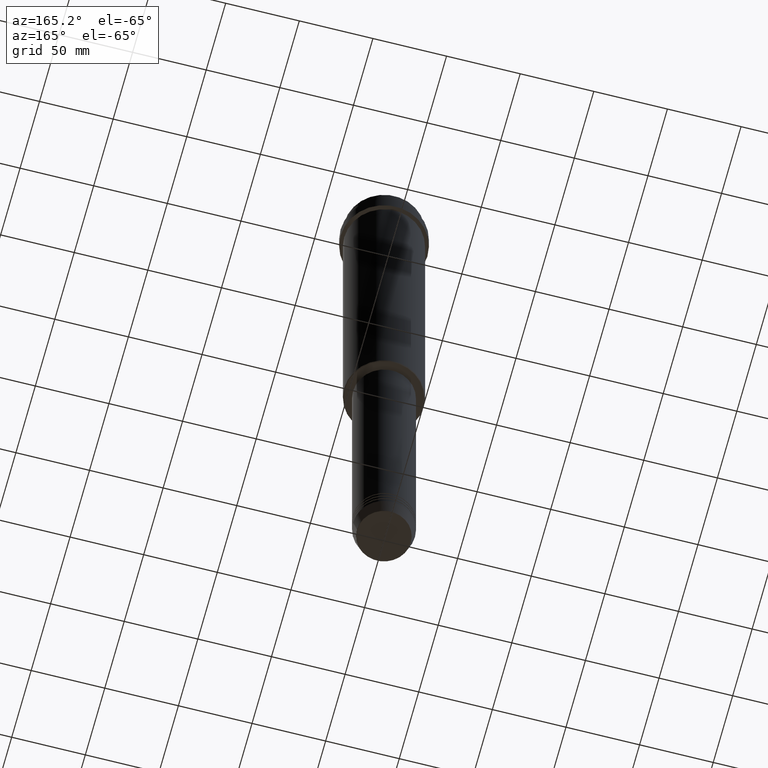
[diagram: clean part render]
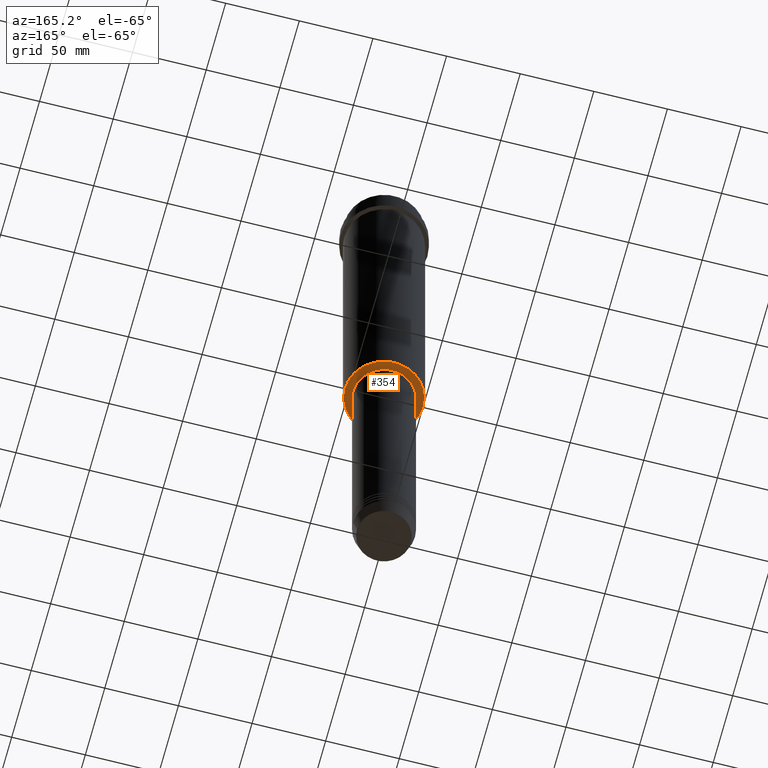
[diagram: same view with one face highlighted and labeled with its STEP entity id]
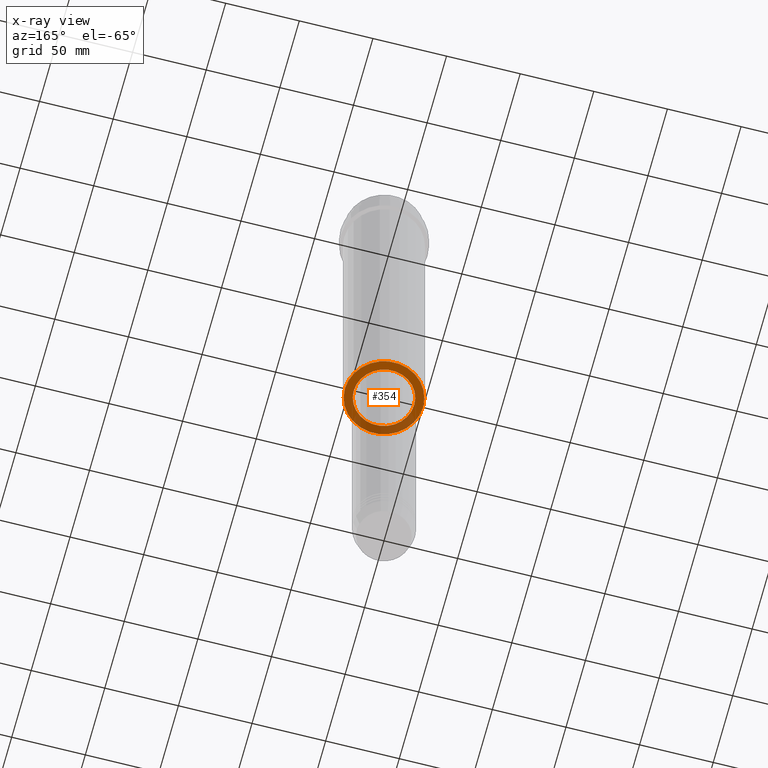
[diagram: x-ray of the same camera — body ghosted, the highlighted face saturated]
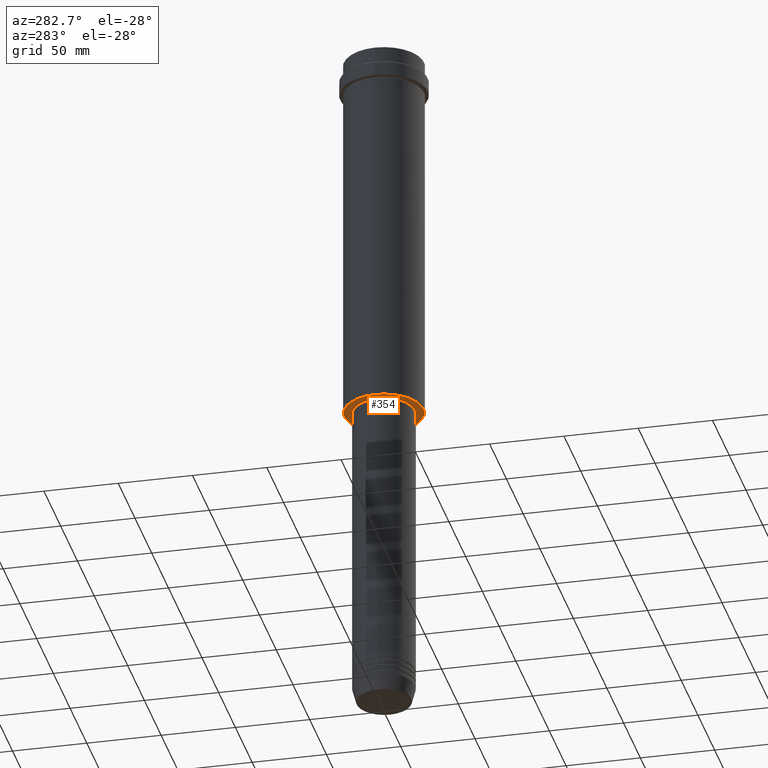
[diagram: same view with one face highlighted and labeled with its STEP entity id]
A machine part, auxiliary view. The second image highlights one B-rep face of the part: STEP entity #354.
The next image is the same camera in x-ray: the body ghosted, the highlighted face saturated — about 30% of this face is hidden behind the body in this view.
A second angle (auxiliary view) of the same face is appended — the face is thin or edge-on in the first view.
In plain terms, the highlighted planar face has unit normal (0, 0, -1).
Its self-contained STEP definition (entity closure, byte-faithful):
#1 = CARTESIAN_POINT ( 'NONE',  ( -26.49999999999996803, 3.275930187719167974E-15, -258.0000000000000000 ) ) ;
#18 = EDGE_CURVE ( 'NONE', #816, #507, #1312, .T. ) ;
#92 = ORIENTED_EDGE ( 'NONE', *, *, #18, .T. ) ;
#143 = DIRECTION ( 'NONE',  ( -0.000000000000000000, -0.000000000000000000, 1.000000000000000000 ) ) ;
#151 = FACE_OUTER_BOUND ( 'NONE', #202, .T. ) ;
#202 = EDGE_LOOP ( 'NONE', ( #1240, #465 ) ) ;
#238 = DIRECTION ( 'NONE',  ( 0.000000000000000000, 0.000000000000000000, -1.000000000000000000 ) ) ;
#254 = EDGE_CURVE ( 'NONE', #680, #1277, #770, .T. ) ;
#281 = DIRECTION ( 'NONE',  ( 1.000000000000000000, 0.000000000000000000, 0.000000000000000000 ) ) ;
#354 = ADVANCED_FACE ( 'NONE', ( #151, #571 ), #675, .T. ) ;
#361 = DIRECTION ( 'NONE',  ( -1.000000000000000000, 0.000000000000000000, 0.000000000000000000 ) ) ;
#375 = CARTESIAN_POINT ( 'NONE',  ( 20.49999999999999289, 0.000000000000000000, -258.0000000000000000 ) ) ;
#376 = CARTESIAN_POINT ( 'NONE',  ( 0.000000000000000000, 27.00000000000000355, -258.0000000000000000 ) ) ;
#427 = AXIS2_PLACEMENT_3D ( 'NONE', #621, #839, #281 ) ;
#465 = ORIENTED_EDGE ( 'NONE', *, *, #254, .T. ) ;
#472 = DIRECTION ( 'NONE',  ( 0.000000000000000000, 0.000000000000000000, -1.000000000000000000 ) ) ;
#505 = CARTESIAN_POINT ( 'NONE',  ( 0.000000000000000000, 0.000000000000000000, -258.0000000000000000 ) ) ;
#507 = VERTEX_POINT ( 'NONE', #1027 ) ;
#571 = FACE_BOUND ( 'NONE', #596, .T. ) ;
#587 = DIRECTION ( 'NONE',  ( 1.000000000000000000, 0.000000000000000000, 0.000000000000000000 ) ) ;
#596 = EDGE_LOOP ( 'NONE', ( #92, #722 ) ) ;
#621 = CARTESIAN_POINT ( 'NONE',  ( 0.000000000000000000, 0.000000000000000000, -258.0000000000000000 ) ) ;
#675 = PLANE ( 'NONE',  #1132 ) ;
#679 = CIRCLE ( 'NONE', #427, 20.49999999999999289 ) ;
#680 = VERTEX_POINT ( 'NONE', #1 ) ;
#696 = DIRECTION ( 'NONE',  ( -1.000000000000000000, 0.000000000000000000, -0.000000000000000000 ) ) ;
#703 = AXIS2_PLACEMENT_3D ( 'NONE', #1225, #882, #361 ) ;
#722 = ORIENTED_EDGE ( 'NONE', *, *, #886, .T. ) ;
#770 = CIRCLE ( 'NONE', #963, 26.49999999999996803 ) ;
#792 = EDGE_CURVE ( 'NONE', #1277, #680, #1195, .T. ) ;
#806 = DIRECTION ( 'NONE',  ( -1.000000000000000000, 0.000000000000000000, 0.000000000000000000 ) ) ;
#816 = VERTEX_POINT ( 'NONE', #375 ) ;
#839 = DIRECTION ( 'NONE',  ( -0.000000000000000000, -0.000000000000000000, 1.000000000000000000 ) ) ;
#882 = DIRECTION ( 'NONE',  ( 0.000000000000000000, 0.000000000000000000, -1.000000000000000000 ) ) ;
#886 = EDGE_CURVE ( 'NONE', #507, #816, #679, .T. ) ;
#963 = AXIS2_PLACEMENT_3D ( 'NONE', #1000, #472, #806 ) ;
#1000 = CARTESIAN_POINT ( 'NONE',  ( 0.000000000000000000, 0.000000000000000000, -258.0000000000000000 ) ) ;
#1027 = CARTESIAN_POINT ( 'NONE',  ( -20.49999999999999289, 2.510525938252073298E-15, -258.0000000000000000 ) ) ;
#1103 = AXIS2_PLACEMENT_3D ( 'NONE', #505, #143, #587 ) ;
#1132 = AXIS2_PLACEMENT_3D ( 'NONE', #376, #238, #696 ) ;
#1195 = CIRCLE ( 'NONE', #703, 26.49999999999996803 ) ;
#1225 = CARTESIAN_POINT ( 'NONE',  ( 0.000000000000000000, 0.000000000000000000, -258.0000000000000000 ) ) ;
#1240 = ORIENTED_EDGE ( 'NONE', *, *, #792, .T. ) ;
#1277 = VERTEX_POINT ( 'NONE', #1410 ) ;
#1312 = CIRCLE ( 'NONE', #1103, 20.49999999999999289 ) ;
#1410 = CARTESIAN_POINT ( 'NONE',  ( 26.49999999999996803, 0.000000000000000000, -258.0000000000000000 ) ) ;